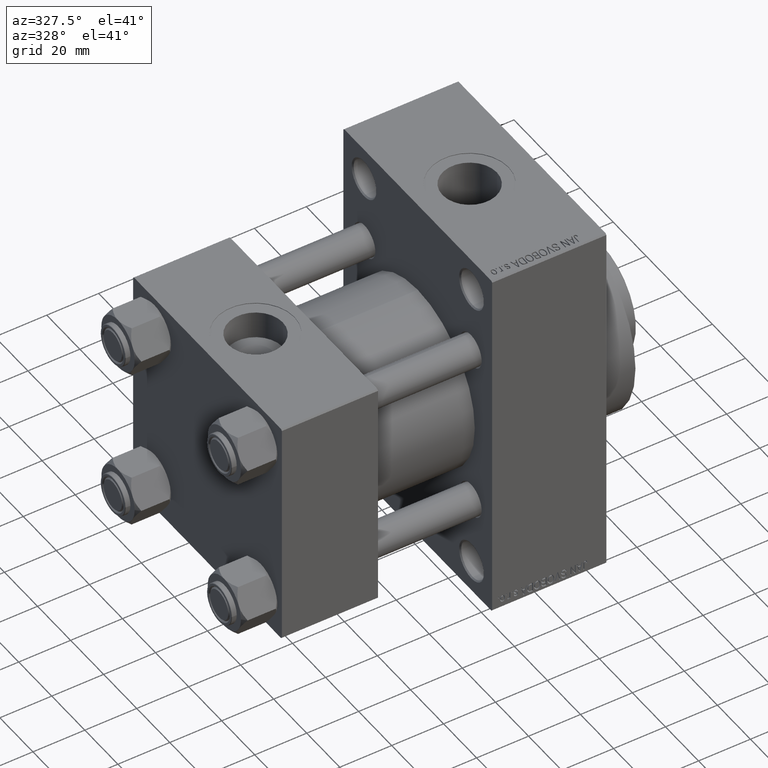
[diagram: clean part render]
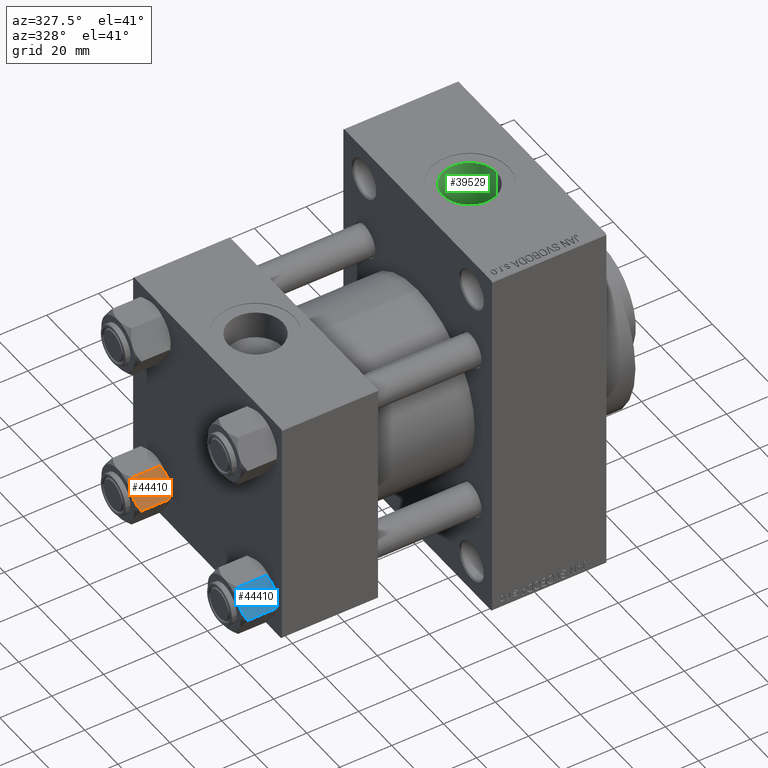
[diagram: same view with three faces highlighted in distinct colors, each labeled with its STEP entity id]
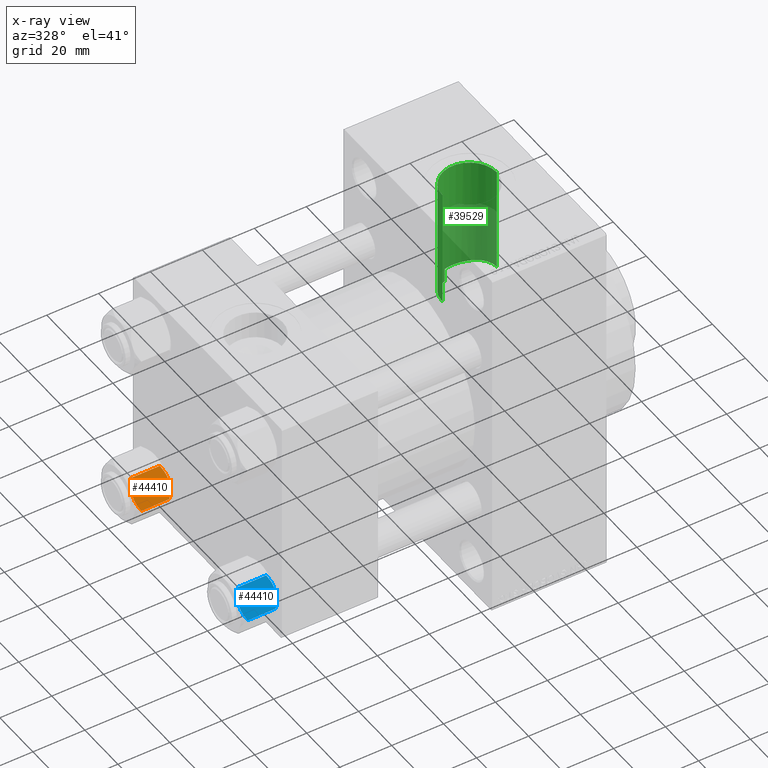
[diagram: x-ray of the same camera — body ghosted, the three highlighted faces saturated]
A machine part, auxiliary view with three faces highlighted in distinct colors.
The next image is the same camera in x-ray (body ghosted, the three faces saturated) — at least one of them is partly hidden behind the body in this view.
Their STEP definitions:

[orange] entity #44410 — the highlighted planar face has unit normal (-0, 0.866, -0.5).
#3125 = ORIENTED_EDGE ( 'NONE', *, *, #39492, .F. ) ;
#3586 = CARTESIAN_POINT ( 'NONE',  ( 11.62000000000000099, -1.689012838886770227E-15, -12.44321519197518633 ) ) ;
#4354 = CARTESIAN_POINT ( 'NONE',  ( 9.716999946243698005, 3.296092779912226156, -13.84547602999602134 ) ) ;
#4572 = EDGE_CURVE ( 'NONE', #31548, #45867, #36152, .T. ) ;
#4600 = CARTESIAN_POINT ( 'NONE',  ( 8.715000000000005187, 5.031607595987590109, -14.00000000000000000 ) ) ;
#4836 = CARTESIAN_POINT ( 'NONE',  ( 8.715000000000005187, 5.031607595987590109, 0.000000000000000000 ) ) ;
#5338 = FACE_OUTER_BOUND ( 'NONE', #24334, .T. ) ;
#7378 = B_SPLINE_CURVE_WITH_KNOTS ( 'NONE', 3,
 ( #27029, #23700, #19389, #16274, #12931, #26800, #37524, #4836 ),
 .UNSPECIFIED., .F., .F.,
 ( 4, 2, 2, 4 ),
 ( 2.544312114903581015E-07, 0.003011550106433540791, 0.004517197944044564449, 0.006022845781655588107 ),
 .UNSPECIFIED. ) ;
#7998 = CARTESIAN_POINT ( 'NONE',  ( 5.810000000000000497, 10.06321519197518022, -12.44321519197518455 ) ) ;
#8240 = CARTESIAN_POINT ( 'NONE',  ( 7.700834831386345058, 6.788193195293094284, -13.80960203119265906 ) ) ;
#8406 = CARTESIAN_POINT ( 'NONE',  ( 11.62000000000000099, -1.689012838886770227E-15, -12.44321519197518633 ) ) ;
#8527 = CARTESIAN_POINT ( 'NONE',  ( 11.62000000000000099, -1.813166800014576593E-15, -14.00000000000000000 ) ) ;
#8712 = CARTESIAN_POINT ( 'NONE',  ( 8.460569896449618099, 5.472293462311861312, -14.00000000000000000 ) ) ;
#8770 = CARTESIAN_POINT ( 'NONE',  ( 5.810000000000000497, 10.06321519197518022, -1.556784808024815892 ) ) ;
#9327 = EDGE_CURVE ( 'NONE', #39734, #9333, #26692, .T. ) ;
#9333 = VERTEX_POINT ( 'NONE', #43856 ) ;
#9843 = CARTESIAN_POINT ( 'NONE',  ( 5.810000000000000497, 10.06321519197518022, -1.556784808024815892 ) ) ;
#9850 = DIRECTION ( 'NONE',  ( 0.4999999999999998335, -0.8660254037844387076, 0.000000000000000000 ) ) ;
#11274 = CARTESIAN_POINT ( 'NONE',  ( 9.220295946303432189, 4.156409344131451356, -14.00000000000000178 ) ) ;
#11644 = ORIENTED_EDGE ( 'NONE', *, *, #19732, .T. ) ;
#11823 = CARTESIAN_POINT ( 'NONE',  ( 6.731401448974991375, 8.467301068182917945, -13.28585617404753627 ) ) ;
#12931 = CARTESIAN_POINT ( 'NONE',  ( 9.729165168613654657, 3.275021996682081493, -0.1903979688073405840 ) ) ;
#14861 = CARTESIAN_POINT ( 'NONE',  ( 8.715000000000005187, 5.031607595987590109, 0.000000000000000000 ) ) ;
#16120 = CARTESIAN_POINT ( 'NONE',  ( 8.715000000000005187, 5.031607595987590109, -14.00000000000000000 ) ) ;
#16274 = CARTESIAN_POINT ( 'NONE',  ( 9.974696630283190757, 2.849749030213792000, -0.3002673809867367205 ) ) ;
#16651 = CARTESIAN_POINT ( 'NONE',  ( 8.715000000000005187, 5.031607595987590109, 0.000000000000000000 ) ) ;
#16796 = VECTOR ( 'NONE', #37593, 1000.000000000000000 ) ;
#17218 = VERTEX_POINT ( 'NONE', #28080 ) ;
#17674 = EDGE_CURVE ( 'NONE', #9333, #31548, #7378, .T. ) ;
#17979 = VERTEX_POINT ( 'NONE', #39352 ) ;
#18701 = ORIENTED_EDGE ( 'NONE', *, *, #17674, .F. ) ;
#19389 = CARTESIAN_POINT ( 'NONE',  ( 10.69859855102501278, 1.595914123792262718, -0.7141438259524649501 ) ) ;
#19732 = EDGE_CURVE ( 'NONE', #17979, #45867, #41182, .T. ) ;
#19758 = CARTESIAN_POINT ( 'NONE',  ( 6.733375043383499126, 8.463882702393844326, -0.7114554706434494946 ) ) ;
#19772 = EDGE_CURVE ( 'NONE', #17979, #17218, #35175, .T. ) ;
#21880 = AXIS2_PLACEMENT_3D ( 'NONE', #41843, #42550, #9850 ) ;
#23103 = DIRECTION ( 'NONE',  ( -0.000000000000000000, -0.000000000000000000, 1.000000000000000000 ) ) ;
#23700 = CARTESIAN_POINT ( 'NONE',  ( 11.16445427487472131, 0.7890283410877956261, -1.101239082899531985 ) ) ;
#24334 = EDGE_LOOP ( 'NONE', ( #27831, #11644, #36068, #18701, #38882, #3125 ) ) ;
#26692 = LINE ( 'NONE', #8527, #30926 ) ;
#26800 = CARTESIAN_POINT ( 'NONE',  ( 9.227666995912102266, 4.143642311704121894, -0.03994118060690670519 ) ) ;
#27029 = CARTESIAN_POINT ( 'NONE',  ( 11.62000000000000099, -1.924525737834042474E-15, -1.556784808024813893 ) ) ;
#27831 = ORIENTED_EDGE ( 'NONE', *, *, #19772, .F. ) ;
#28080 = CARTESIAN_POINT ( 'NONE',  ( 8.715000000000005187, 5.031607595987590109, -14.00000000000000000 ) ) ;
#30673 = CARTESIAN_POINT ( 'NONE',  ( 5.810000000000000497, 10.06321519197518022, -14.00000000000000000 ) ) ;
#30926 = VECTOR ( 'NONE', #23103, 1000.000000000000000 ) ;
#31197 = CARTESIAN_POINT ( 'NONE',  ( 7.713000053756307928, 6.767122412062951398, -0.1545239700039825748 ) ) ;
#31548 = VERTEX_POINT ( 'NONE', #14861 ) ;
#34444 = PLANE ( 'NONE',  #21880 ) ;
#35175 = B_SPLINE_CURVE_WITH_KNOTS ( 'NONE', 3,
 ( #7998, #44999, #11823, #40943, #8240, #37363, #8712, #16120 ),
 .UNSPECIFIED., .F., .F.,
 ( 4, 2, 2, 4 ),
 ( 2.544312114902182352E-07, 0.003011550106433542526, 0.004517197944044567919, 0.006022845781655592444 ),
 .UNSPECIFIED. ) ;
#36068 = ORIENTED_EDGE ( 'NONE', *, *, #4572, .F. ) ;
#36152 = B_SPLINE_CURVE_WITH_KNOTS ( 'NONE', 3,
 ( #16651, #38595, #31197, #19758, #46235, #8770 ),
 .UNSPECIFIED., .F., .F.,
 ( 4, 2, 4 ),
 ( 0.006022845781655588107, 0.009013049135303636758, 0.01200325248895168367 ),
 .UNSPECIFIED. ) ;
#36803 = CARTESIAN_POINT ( 'NONE',  ( 11.16498164529022574, 0.7881149087337292469, -12.89823354668504862 ) ) ;
#37363 = CARTESIAN_POINT ( 'NONE',  ( 8.202333004087901003, 5.919572880271053883, -13.96005881939309567 ) ) ;
#37524 = CARTESIAN_POINT ( 'NONE',  ( 8.969430103550381617, 4.590921729663312689, 3.523657060577888622E-15 ) ) ;
#37593 = DIRECTION ( 'NONE',  ( -0.000000000000000000, -0.000000000000000000, 1.000000000000000000 ) ) ;
#38595 = CARTESIAN_POINT ( 'NONE',  ( 8.209704053696576409, 5.906805847843727086, 3.430483436379916373E-15 ) ) ;
#38740 = B_SPLINE_CURVE_WITH_KNOTS ( 'NONE', 3,
 ( #4600, #11274, #4354, #44209, #36803, #8406 ),
 .UNSPECIFIED., .F., .F.,
 ( 4, 2, 4 ),
 ( 0.006022845781655592444, 0.009013049135303636758, 0.01200325248895168194 ),
 .UNSPECIFIED. ) ;
#38882 = ORIENTED_EDGE ( 'NONE', *, *, #9327, .F. ) ;
#39352 = CARTESIAN_POINT ( 'NONE',  ( 5.810000000000000497, 10.06321519197518022, -12.44321519197518455 ) ) ;
#39492 = EDGE_CURVE ( 'NONE', #17218, #39734, #38740, .T. ) ;
#39734 = VERTEX_POINT ( 'NONE', #3586 ) ;
#40943 = CARTESIAN_POINT ( 'NONE',  ( 7.455303369716807182, 7.213466161761384221, -13.69973261901325934 ) ) ;
#41182 = LINE ( 'NONE', #30673, #16796 ) ;
#41843 = CARTESIAN_POINT ( 'NONE',  ( 5.810000000000000497, 10.06321519197518022, -14.00000000000000000 ) ) ;
#42550 = DIRECTION ( 'NONE',  ( -0.8660254037844387076, -0.4999999999999998335, 0.000000000000000000 ) ) ;
#43856 = CARTESIAN_POINT ( 'NONE',  ( 11.62000000000000099, -1.924525737834042474E-15, -1.556784808024813893 ) ) ;
#44209 = CARTESIAN_POINT ( 'NONE',  ( 10.69662495661650503, 1.599332489581333672, -13.28854452935655139 ) ) ;
#44410 = ADVANCED_FACE ( 'NONE', ( #5338 ), #34444, .F. ) ;
#44999 = CARTESIAN_POINT ( 'NONE',  ( 6.265545725125286403, 9.274186850887383926, -12.89876091710046957 ) ) ;
#45867 = VERTEX_POINT ( 'NONE', #9843 ) ;
#46235 = CARTESIAN_POINT ( 'NONE',  ( 6.265018354709773973, 9.275100283241448196, -1.101766453314953154 ) ) ;

[blue] entity #44410 — the highlighted planar face has unit normal (-0, 0.866, -0.5).
#3125 = ORIENTED_EDGE ( 'NONE', *, *, #39492, .F. ) ;
#3586 = CARTESIAN_POINT ( 'NONE',  ( 11.62000000000000099, -1.689012838886770227E-15, -12.44321519197518633 ) ) ;
#4354 = CARTESIAN_POINT ( 'NONE',  ( 9.716999946243698005, 3.296092779912226156, -13.84547602999602134 ) ) ;
#4572 = EDGE_CURVE ( 'NONE', #31548, #45867, #36152, .T. ) ;
#4600 = CARTESIAN_POINT ( 'NONE',  ( 8.715000000000005187, 5.031607595987590109, -14.00000000000000000 ) ) ;
#4836 = CARTESIAN_POINT ( 'NONE',  ( 8.715000000000005187, 5.031607595987590109, 0.000000000000000000 ) ) ;
#5338 = FACE_OUTER_BOUND ( 'NONE', #24334, .T. ) ;
#7378 = B_SPLINE_CURVE_WITH_KNOTS ( 'NONE', 3,
 ( #27029, #23700, #19389, #16274, #12931, #26800, #37524, #4836 ),
 .UNSPECIFIED., .F., .F.,
 ( 4, 2, 2, 4 ),
 ( 2.544312114903581015E-07, 0.003011550106433540791, 0.004517197944044564449, 0.006022845781655588107 ),
 .UNSPECIFIED. ) ;
#7998 = CARTESIAN_POINT ( 'NONE',  ( 5.810000000000000497, 10.06321519197518022, -12.44321519197518455 ) ) ;
#8240 = CARTESIAN_POINT ( 'NONE',  ( 7.700834831386345058, 6.788193195293094284, -13.80960203119265906 ) ) ;
#8406 = CARTESIAN_POINT ( 'NONE',  ( 11.62000000000000099, -1.689012838886770227E-15, -12.44321519197518633 ) ) ;
#8527 = CARTESIAN_POINT ( 'NONE',  ( 11.62000000000000099, -1.813166800014576593E-15, -14.00000000000000000 ) ) ;
#8712 = CARTESIAN_POINT ( 'NONE',  ( 8.460569896449618099, 5.472293462311861312, -14.00000000000000000 ) ) ;
#8770 = CARTESIAN_POINT ( 'NONE',  ( 5.810000000000000497, 10.06321519197518022, -1.556784808024815892 ) ) ;
#9327 = EDGE_CURVE ( 'NONE', #39734, #9333, #26692, .T. ) ;
#9333 = VERTEX_POINT ( 'NONE', #43856 ) ;
#9843 = CARTESIAN_POINT ( 'NONE',  ( 5.810000000000000497, 10.06321519197518022, -1.556784808024815892 ) ) ;
#9850 = DIRECTION ( 'NONE',  ( 0.4999999999999998335, -0.8660254037844387076, 0.000000000000000000 ) ) ;
#11274 = CARTESIAN_POINT ( 'NONE',  ( 9.220295946303432189, 4.156409344131451356, -14.00000000000000178 ) ) ;
#11644 = ORIENTED_EDGE ( 'NONE', *, *, #19732, .T. ) ;
#11823 = CARTESIAN_POINT ( 'NONE',  ( 6.731401448974991375, 8.467301068182917945, -13.28585617404753627 ) ) ;
#12931 = CARTESIAN_POINT ( 'NONE',  ( 9.729165168613654657, 3.275021996682081493, -0.1903979688073405840 ) ) ;
#14861 = CARTESIAN_POINT ( 'NONE',  ( 8.715000000000005187, 5.031607595987590109, 0.000000000000000000 ) ) ;
#16120 = CARTESIAN_POINT ( 'NONE',  ( 8.715000000000005187, 5.031607595987590109, -14.00000000000000000 ) ) ;
#16274 = CARTESIAN_POINT ( 'NONE',  ( 9.974696630283190757, 2.849749030213792000, -0.3002673809867367205 ) ) ;
#16651 = CARTESIAN_POINT ( 'NONE',  ( 8.715000000000005187, 5.031607595987590109, 0.000000000000000000 ) ) ;
#16796 = VECTOR ( 'NONE', #37593, 1000.000000000000000 ) ;
#17218 = VERTEX_POINT ( 'NONE', #28080 ) ;
#17674 = EDGE_CURVE ( 'NONE', #9333, #31548, #7378, .T. ) ;
#17979 = VERTEX_POINT ( 'NONE', #39352 ) ;
#18701 = ORIENTED_EDGE ( 'NONE', *, *, #17674, .F. ) ;
#19389 = CARTESIAN_POINT ( 'NONE',  ( 10.69859855102501278, 1.595914123792262718, -0.7141438259524649501 ) ) ;
#19732 = EDGE_CURVE ( 'NONE', #17979, #45867, #41182, .T. ) ;
#19758 = CARTESIAN_POINT ( 'NONE',  ( 6.733375043383499126, 8.463882702393844326, -0.7114554706434494946 ) ) ;
#19772 = EDGE_CURVE ( 'NONE', #17979, #17218, #35175, .T. ) ;
#21880 = AXIS2_PLACEMENT_3D ( 'NONE', #41843, #42550, #9850 ) ;
#23103 = DIRECTION ( 'NONE',  ( -0.000000000000000000, -0.000000000000000000, 1.000000000000000000 ) ) ;
#23700 = CARTESIAN_POINT ( 'NONE',  ( 11.16445427487472131, 0.7890283410877956261, -1.101239082899531985 ) ) ;
#24334 = EDGE_LOOP ( 'NONE', ( #27831, #11644, #36068, #18701, #38882, #3125 ) ) ;
#26692 = LINE ( 'NONE', #8527, #30926 ) ;
#26800 = CARTESIAN_POINT ( 'NONE',  ( 9.227666995912102266, 4.143642311704121894, -0.03994118060690670519 ) ) ;
#27029 = CARTESIAN_POINT ( 'NONE',  ( 11.62000000000000099, -1.924525737834042474E-15, -1.556784808024813893 ) ) ;
#27831 = ORIENTED_EDGE ( 'NONE', *, *, #19772, .F. ) ;
#28080 = CARTESIAN_POINT ( 'NONE',  ( 8.715000000000005187, 5.031607595987590109, -14.00000000000000000 ) ) ;
#30673 = CARTESIAN_POINT ( 'NONE',  ( 5.810000000000000497, 10.06321519197518022, -14.00000000000000000 ) ) ;
#30926 = VECTOR ( 'NONE', #23103, 1000.000000000000000 ) ;
#31197 = CARTESIAN_POINT ( 'NONE',  ( 7.713000053756307928, 6.767122412062951398, -0.1545239700039825748 ) ) ;
#31548 = VERTEX_POINT ( 'NONE', #14861 ) ;
#34444 = PLANE ( 'NONE',  #21880 ) ;
#35175 = B_SPLINE_CURVE_WITH_KNOTS ( 'NONE', 3,
 ( #7998, #44999, #11823, #40943, #8240, #37363, #8712, #16120 ),
 .UNSPECIFIED., .F., .F.,
 ( 4, 2, 2, 4 ),
 ( 2.544312114902182352E-07, 0.003011550106433542526, 0.004517197944044567919, 0.006022845781655592444 ),
 .UNSPECIFIED. ) ;
#36068 = ORIENTED_EDGE ( 'NONE', *, *, #4572, .F. ) ;
#36152 = B_SPLINE_CURVE_WITH_KNOTS ( 'NONE', 3,
 ( #16651, #38595, #31197, #19758, #46235, #8770 ),
 .UNSPECIFIED., .F., .F.,
 ( 4, 2, 4 ),
 ( 0.006022845781655588107, 0.009013049135303636758, 0.01200325248895168367 ),
 .UNSPECIFIED. ) ;
#36803 = CARTESIAN_POINT ( 'NONE',  ( 11.16498164529022574, 0.7881149087337292469, -12.89823354668504862 ) ) ;
#37363 = CARTESIAN_POINT ( 'NONE',  ( 8.202333004087901003, 5.919572880271053883, -13.96005881939309567 ) ) ;
#37524 = CARTESIAN_POINT ( 'NONE',  ( 8.969430103550381617, 4.590921729663312689, 3.523657060577888622E-15 ) ) ;
#37593 = DIRECTION ( 'NONE',  ( -0.000000000000000000, -0.000000000000000000, 1.000000000000000000 ) ) ;
#38595 = CARTESIAN_POINT ( 'NONE',  ( 8.209704053696576409, 5.906805847843727086, 3.430483436379916373E-15 ) ) ;
#38740 = B_SPLINE_CURVE_WITH_KNOTS ( 'NONE', 3,
 ( #4600, #11274, #4354, #44209, #36803, #8406 ),
 .UNSPECIFIED., .F., .F.,
 ( 4, 2, 4 ),
 ( 0.006022845781655592444, 0.009013049135303636758, 0.01200325248895168194 ),
 .UNSPECIFIED. ) ;
#38882 = ORIENTED_EDGE ( 'NONE', *, *, #9327, .F. ) ;
#39352 = CARTESIAN_POINT ( 'NONE',  ( 5.810000000000000497, 10.06321519197518022, -12.44321519197518455 ) ) ;
#39492 = EDGE_CURVE ( 'NONE', #17218, #39734, #38740, .T. ) ;
#39734 = VERTEX_POINT ( 'NONE', #3586 ) ;
#40943 = CARTESIAN_POINT ( 'NONE',  ( 7.455303369716807182, 7.213466161761384221, -13.69973261901325934 ) ) ;
#41182 = LINE ( 'NONE', #30673, #16796 ) ;
#41843 = CARTESIAN_POINT ( 'NONE',  ( 5.810000000000000497, 10.06321519197518022, -14.00000000000000000 ) ) ;
#42550 = DIRECTION ( 'NONE',  ( -0.8660254037844387076, -0.4999999999999998335, 0.000000000000000000 ) ) ;
#43856 = CARTESIAN_POINT ( 'NONE',  ( 11.62000000000000099, -1.924525737834042474E-15, -1.556784808024813893 ) ) ;
#44209 = CARTESIAN_POINT ( 'NONE',  ( 10.69662495661650503, 1.599332489581333672, -13.28854452935655139 ) ) ;
#44410 = ADVANCED_FACE ( 'NONE', ( #5338 ), #34444, .F. ) ;
#44999 = CARTESIAN_POINT ( 'NONE',  ( 6.265545725125286403, 9.274186850887383926, -12.89876091710046957 ) ) ;
#45867 = VERTEX_POINT ( 'NONE', #9843 ) ;
#46235 = CARTESIAN_POINT ( 'NONE',  ( 6.265018354709773973, 9.275100283241448196, -1.101766453314953154 ) ) ;

[green] entity #39529 — the highlighted cylindrical surface (edge-blend (fillet) strip) has radius 10.48 mm, axis along (0, 0, -1).
#416 = CARTESIAN_POINT ( 'NONE',  ( 91.22427909904563137, 3.787004330726774004, 24.71284667523638134 ) ) ;
#1963 = CARTESIAN_POINT ( 'NONE',  ( 90.51999999999999602, 3.061579607129328475E-15, 25.00000000000000000 ) ) ;
#2273 = DIRECTION ( 'NONE',  ( -0.000000000000000000, -0.000000000000000000, -1.000000000000000000 ) ) ;
#2576 = DIRECTION ( 'NONE',  ( 0.000000000000000000, 0.000000000000000000, -1.000000000000000000 ) ) ;
#2626 = VECTOR ( 'NONE', #2576, 1000.000000000000000 ) ;
#2748 = EDGE_CURVE ( 'NONE', #39226, #39411, #42671, .T. ) ;
#3466 = CARTESIAN_POINT ( 'NONE',  ( 111.3830360161806254, 1.648097371455667037, 29.96570276014226764 ) ) ;
#3702 = CARTESIAN_POINT ( 'NONE',  ( 110.1456671303457142, 5.133639323080407380, 29.55979794353438095 ) ) ;
#3760 = CARTESIAN_POINT ( 'NONE',  ( 91.93065594560268039, 5.280155339913229717, 24.44112276137722262 ) ) ;
#4163 = CARTESIAN_POINT ( 'NONE',  ( 99.34059067740447801, 10.38092379675460109, 28.14678245432906678 ) ) ;
#4171 = CARTESIAN_POINT ( 'NONE',  ( 97.73999999999999488, 9.960060240781668739, 28.29836037653065617 ) ) ;
#4184 = CARTESIAN_POINT ( 'NONE',  ( 97.73999999999999488, 9.960060240781668739, 22.93026820601975402 ) ) ;
#5345 = CIRCLE ( 'NONE', #41924, 10.48000000000000398 ) ;
#5567 = VERTEX_POINT ( 'NONE', #21407 ) ;
#5741 = VERTEX_POINT ( 'NONE', #43504 ) ;
#6875 = CARTESIAN_POINT ( 'NONE',  ( 91.43648372410437730, 4.294796546401065562, 24.62967549968344372 ) ) ;
#7271 = CARTESIAN_POINT ( 'NONE',  ( 106.5055286267077577, 8.955395143035868699, 28.63663715154386580 ) ) ;
#7333 = CARTESIAN_POINT ( 'NONE',  ( 97.22046957596535321, 9.790014162604526504, 23.00412993180229648 ) ) ;
#8218 = CARTESIAN_POINT ( 'NONE',  ( 109.4793501314061359, 6.172613663302652931, 29.36019312204047083 ) ) ;
#8631 = EDGE_CURVE ( 'NONE', #9692, #5567, #26167, .T. ) ;
#9597 = EDGE_CURVE ( 'NONE', #9692, #41042, #43332, .T. ) ;
#9692 = VERTEX_POINT ( 'NONE', #4171 ) ;
#10631 = CARTESIAN_POINT ( 'NONE',  ( 97.73999999999999488, 9.960060240781668739, 93.79999999999996874 ) ) ;
#10687 = CARTESIAN_POINT ( 'NONE',  ( 90.52000000000002444, 0.2761730040892639293, 25.00000000000000355 ) ) ;
#10810 = CARTESIAN_POINT ( 'NONE',  ( 90.51999999999999602, -1.094803260394251466E-14, 70.79999999999996874 ) ) ;
#10912 = CARTESIAN_POINT ( 'NONE',  ( 91.55342320132685074, 4.546234407114481790, 24.58442359052068937 ) ) ;
#11086 = CARTESIAN_POINT ( 'NONE',  ( 103.0591099703892581, 10.28399729863218504, 28.18233838691855908 ) ) ;
#11140 = B_SPLINE_CURVE_WITH_KNOTS ( 'NONE', 3,
 ( #25492, #10687, #11148, #14275, #39577, #43614, #47216, #32874, #416, #6875, #10912, #3760, #25265, #14505, #36000, #32174, #21671, #14973, #39339, #40037, #28837, #33103, #7333, #29527 ),
 .UNSPECIFIED., .F., .F.,
 ( 4, 2, 2, 2, 2, 2, 2, 2, 2, 2, 2, 4 ),
 ( 0.03315293716445246591, 0.03398143856659528034, 0.03480993996873808782, 0.03646694277302370973, 0.03729544417516652416, 0.03812394557730933858, 0.03978094838159496049, 0.04060944978373776798, 0.04143795118588057547, 0.04309495399016619738, 0.04475195679445181235, 0.04640895959873742732 ),
 .UNSPECIFIED. ) ;
#11148 = CARTESIAN_POINT ( 'NONE',  ( 90.53089917534431663, 0.5526879277622459563, 24.99542504668380616 ) ) ;
#11327 = CARTESIAN_POINT ( 'NONE',  ( 111.4799999999999898, 3.673940397618238639E-15, 30.00000000000000000 ) ) ;
#11800 = CARTESIAN_POINT ( 'NONE',  ( 101.0002282757462666, 10.48827684731154974, 28.10687390860658752 ) ) ;
#12601 = EDGE_LOOP ( 'NONE', ( #14970, #20312, #40669, #14479, #36417, #27774 ) ) ;
#13115 = EDGE_CURVE ( 'NONE', #5741, #5567, #19257, .T. ) ;
#14275 = CARTESIAN_POINT ( 'NONE',  ( 90.57486750893737337, 1.106412475567414289, 24.97704123077413740 ) ) ;
#14479 = ORIENTED_EDGE ( 'NONE', *, *, #21316, .T. ) ;
#14505 = CARTESIAN_POINT ( 'NONE',  ( 92.69672446213152739, 6.399965487557562227, 24.16798554837829016 ) ) ;
#14674 = CARTESIAN_POINT ( 'NONE',  ( 101.8327597629122323, 10.45516439159307787, 28.11920784241487326 ) ) ;
#14857 = CYLINDRICAL_SURFACE ( 'NONE', #31622, 10.48000000000000398 ) ;
#14912 = CARTESIAN_POINT ( 'NONE',  ( 107.8380018292597384, 7.984464829307558631, 28.92238598225678103 ) ) ;
#14970 = ORIENTED_EDGE ( 'NONE', *, *, #13115, .F. ) ;
#14973 = CARTESIAN_POINT ( 'NONE',  ( 93.98469892201671883, 7.804704455460313994, 23.75393200882464484 ) ) ;
#15575 = CARTESIAN_POINT ( 'NONE',  ( 100.9999999999999858, -1.094803260394251466E-14, 93.79999999999996874 ) ) ;
#15682 = DIRECTION ( 'NONE',  ( 0.000000000000000000, 0.000000000000000000, -1.000000000000000000 ) ) ;
#17474 = DIRECTION ( 'NONE',  ( 1.000000000000000000, 0.000000000000000000, 0.000000000000000000 ) ) ;
#18263 = CARTESIAN_POINT ( 'NONE',  ( 110.6823871826148462, 4.031213830330552916, 29.73045584359391569 ) ) ;
#18725 = CARTESIAN_POINT ( 'NONE',  ( 109.9382592368621090, 5.487081182378869215, 29.49600040171356596 ) ) ;
#19150 = DIRECTION ( 'NONE',  ( 0.000000000000000000, 0.000000000000000000, -1.000000000000000000 ) ) ;
#19257 = LINE ( 'NONE', #33810, #26449 ) ;
#19887 = EDGE_CURVE ( 'NONE', #39226, #5741, #5345, .T. ) ;
#20312 = ORIENTED_EDGE ( 'NONE', *, *, #19887, .F. ) ;
#21316 = EDGE_CURVE ( 'NONE', #39411, #41042, #11140, .T. ) ;
#21407 = CARTESIAN_POINT ( 'NONE',  ( 111.4799999999999898, 3.673940397618238639E-15, 30.00000000000000000 ) ) ;
#21671 = CARTESIAN_POINT ( 'NONE',  ( 93.40550942694525816, 7.226927296489264130, 23.93349527817645850 ) ) ;
#22507 = VECTOR ( 'NONE', #29013, 1000.000000000000000 ) ;
#22554 = CARTESIAN_POINT ( 'NONE',  ( 111.4799999999999613, 0.8289108953755146558, 29.99999999999999289 ) ) ;
#22746 = DIRECTION ( 'NONE',  ( -1.000000000000000000, 0.000000000000000000, 0.000000000000000000 ) ) ;
#25265 = CARTESIAN_POINT ( 'NONE',  ( 92.21689529189161760, 5.742964677340205881, 24.33562597405337868 ) ) ;
#25492 = CARTESIAN_POINT ( 'NONE',  ( 90.51999999999999602, 3.061579607129328475E-15, 25.00000000000000000 ) ) ;
#26167 = B_SPLINE_CURVE_WITH_KNOTS ( 'NONE', 3,
 ( #37101, #44502, #4163, #32817, #11800, #14674, #29467, #11086, #43557, #29007, #36167, #40443, #7271, #14912, #33530, #29229, #8218, #18725, #3702, #44023, #18263, #36857, #33285, #3466, #22554, #11327 ),
 .UNSPECIFIED., .F., .F.,
 ( 4, 2, 2, 2, 2, 2, 2, 2, 2, 2, 2, 2, 4 ),
 ( 0.000000000000000000, 0.002478973229448049737, 0.003718459844172075038, 0.004957946458896099473, 0.006197433073620124341, 0.007436919688344150077, 0.009915892917792162517, 0.01239486614724017409, 0.01363435276196417988, 0.01487383937668818393, 0.01611332599141218971, 0.01735281260613619550, 0.01983178583558420013 ),
 .UNSPECIFIED. ) ;
#26449 = VECTOR ( 'NONE', #15682, 1000.000000000000000 ) ;
#26569 = FACE_OUTER_BOUND ( 'NONE', #12601, .T. ) ;
#27774 = ORIENTED_EDGE ( 'NONE', *, *, #8631, .T. ) ;
#28685 = CARTESIAN_POINT ( 'NONE',  ( 100.9999999999999858, -1.094803260394251466E-14, 70.79999999999996874 ) ) ;
#28837 = CARTESIAN_POINT ( 'NONE',  ( 95.73349084287403343, 9.077331294423915509, 23.29539276492243260 ) ) ;
#29007 = CARTESIAN_POINT ( 'NONE',  ( 104.2590511626587073, 9.968980903826002660, 28.29547369785729671 ) ) ;
#29013 = DIRECTION ( 'NONE',  ( 0.000000000000000000, 0.000000000000000000, -1.000000000000000000 ) ) ;
#29229 = CARTESIAN_POINT ( 'NONE',  ( 109.2306735501210824, 6.500194899328793241, 29.28905352826703279 ) ) ;
#29467 = CARTESIAN_POINT ( 'NONE',  ( 102.2444743077374909, 10.41402026144618453, 28.13455134504983235 ) ) ;
#29527 = CARTESIAN_POINT ( 'NONE',  ( 97.73999999999999488, 9.960060240781668739, 22.93026820601975402 ) ) ;
#31622 = AXIS2_PLACEMENT_3D ( 'NONE', #15575, #19150, #22746 ) ;
#32174 = CARTESIAN_POINT ( 'NONE',  ( 93.21911504617180810, 7.025825097695077126, 23.99341311413245847 ) ) ;
#32817 = CARTESIAN_POINT ( 'NONE',  ( 100.5797722390586557, 10.47976684723566443, 28.11006442857998877 ) ) ;
#32874 = CARTESIAN_POINT ( 'NONE',  ( 91.12843841376383125, 3.529601645624517836, 24.75098332906153331 ) ) ;
#33103 = CARTESIAN_POINT ( 'NONE',  ( 96.71450222533859176, 9.579591377203486857, 23.09339075464096425 ) ) ;
#33285 = CARTESIAN_POINT ( 'NONE',  ( 111.0901672462784688, 2.862209008249562814, 29.86591119163860597 ) ) ;
#33530 = CARTESIAN_POINT ( 'NONE',  ( 108.4361280113390222, 7.429595108124755320, 29.07242469717888511 ) ) ;
#33810 = CARTESIAN_POINT ( 'NONE',  ( 111.4799999999999898, -9.664602758436087591E-15, 93.79999999999996874 ) ) ;
#35753 = CARTESIAN_POINT ( 'NONE',  ( 90.51999999999999602, -1.094803260394251466E-14, 93.79999999999996874 ) ) ;
#36000 = CARTESIAN_POINT ( 'NONE',  ( 92.86512538389703764, 6.612730445768632670, 24.11053477674086309 ) ) ;
#36167 = CARTESIAN_POINT ( 'NONE',  ( 104.6536175153769648, 9.831116643405016120, 28.34390843602812993 ) ) ;
#36417 = ORIENTED_EDGE ( 'NONE', *, *, #9597, .F. ) ;
#36857 = CARTESIAN_POINT ( 'NONE',  ( 110.9683417730961139, 3.260593319422034231, 29.82480881445975385 ) ) ;
#37101 = CARTESIAN_POINT ( 'NONE',  ( 97.73999999999999488, 9.960060240781668739, 28.29836037653065617 ) ) ;
#39226 = VERTEX_POINT ( 'NONE', #10810 ) ;
#39339 = CARTESIAN_POINT ( 'NONE',  ( 94.39636035624793919, 8.155655190358217510, 23.63471280748279924 ) ) ;
#39411 = VERTEX_POINT ( 'NONE', #1963 ) ;
#39529 = ADVANCED_FACE ( 'NONE', ( #26569 ), #14857, .F. ) ;
#39577 = CARTESIAN_POINT ( 'NONE',  ( 90.60817128935903497, 1.384942614456406762, 24.96313457725881335 ) ) ;
#40037 = CARTESIAN_POINT ( 'NONE',  ( 95.27076495388506316, 8.791964167062968016, 23.40546361773868256 ) ) ;
#40443 = CARTESIAN_POINT ( 'NONE',  ( 105.7931686517055283, 9.355930520045840026, 28.50576369173083791 ) ) ;
#40669 = ORIENTED_EDGE ( 'NONE', *, *, #2748, .T. ) ;
#41042 = VERTEX_POINT ( 'NONE', #4184 ) ;
#41924 = AXIS2_PLACEMENT_3D ( 'NONE', #28685, #2273, #17474 ) ;
#42671 = LINE ( 'NONE', #35753, #2626 ) ;
#43332 = LINE ( 'NONE', #10631, #22507 ) ;
#43504 = CARTESIAN_POINT ( 'NONE',  ( 111.4799999999999898, -9.664602758436087591E-15, 70.79999999999996874 ) ) ;
#43557 = CARTESIAN_POINT ( 'NONE',  ( 103.4620306645708325, 10.19511646566077268, 28.21478357702915218 ) ) ;
#43614 = CARTESIAN_POINT ( 'NONE',  ( 90.74071248067697582, 2.210995156578863696, 24.90815361058044175 ) ) ;
#44023 = CARTESIAN_POINT ( 'NONE',  ( 110.5177326829065692, 4.405705906582507936, 29.67702246902073426 ) ) ;
#44502 = CARTESIAN_POINT ( 'NONE',  ( 98.53170141085058731, 10.21918985817144865, 28.20715556589740203 ) ) ;
#47216 = CARTESIAN_POINT ( 'NONE',  ( 90.87147927091555744, 2.746840284963952605, 24.85421337676989140 ) ) ;